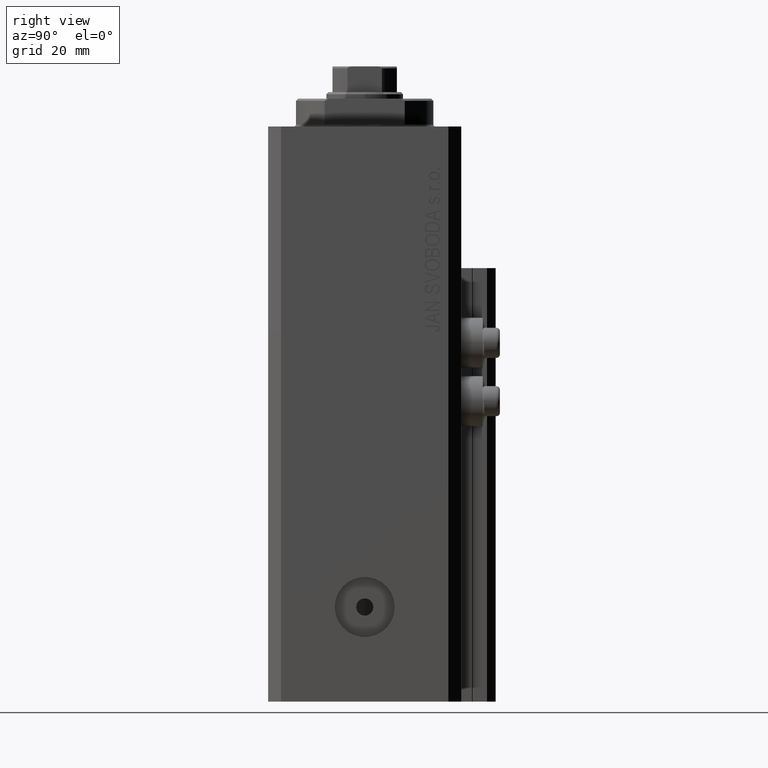
[diagram: clean part render]
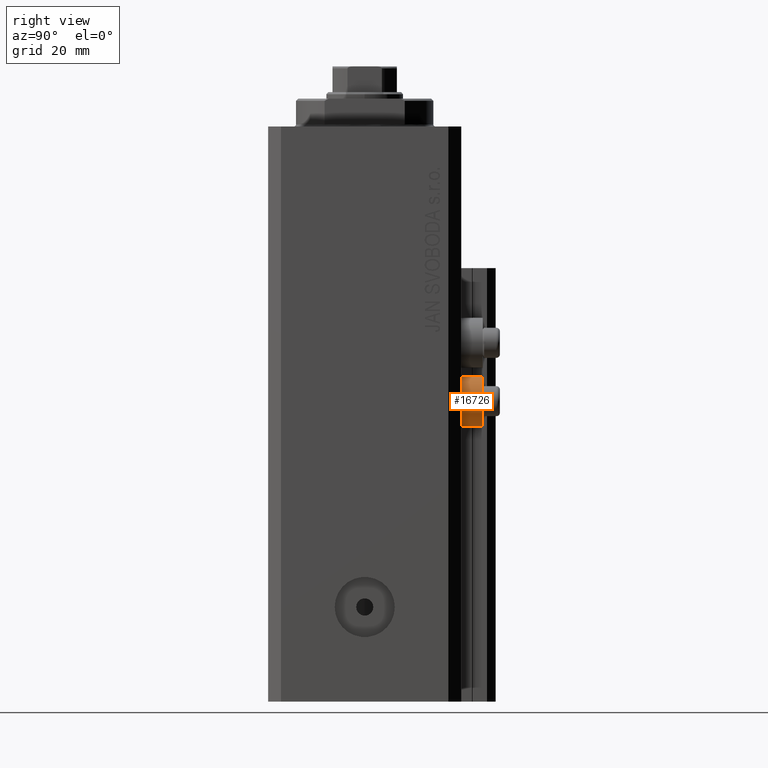
[diagram: same view with one face highlighted and labeled with its STEP entity id]
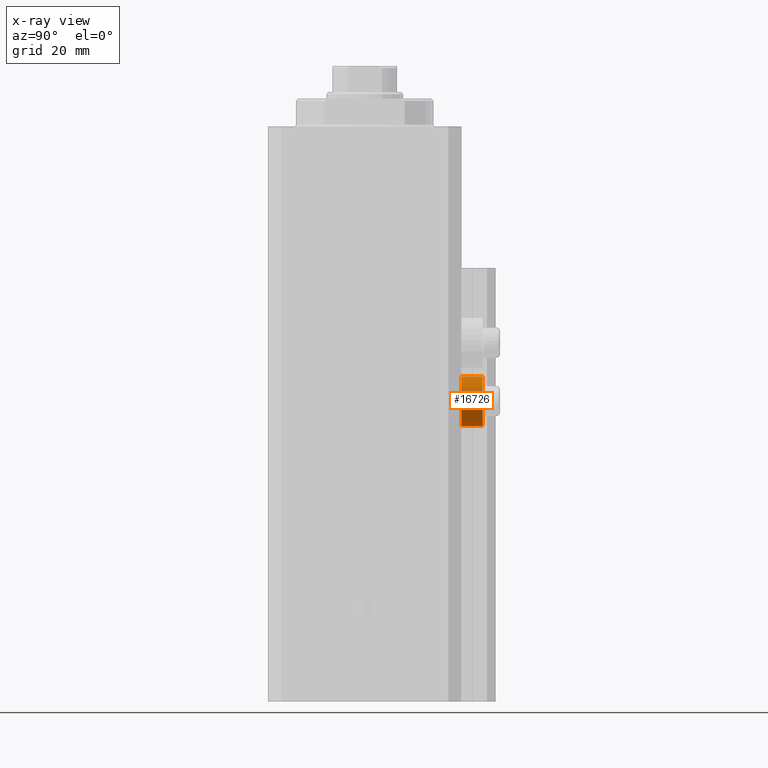
[diagram: x-ray of the same camera — body ghosted, the highlighted face saturated]
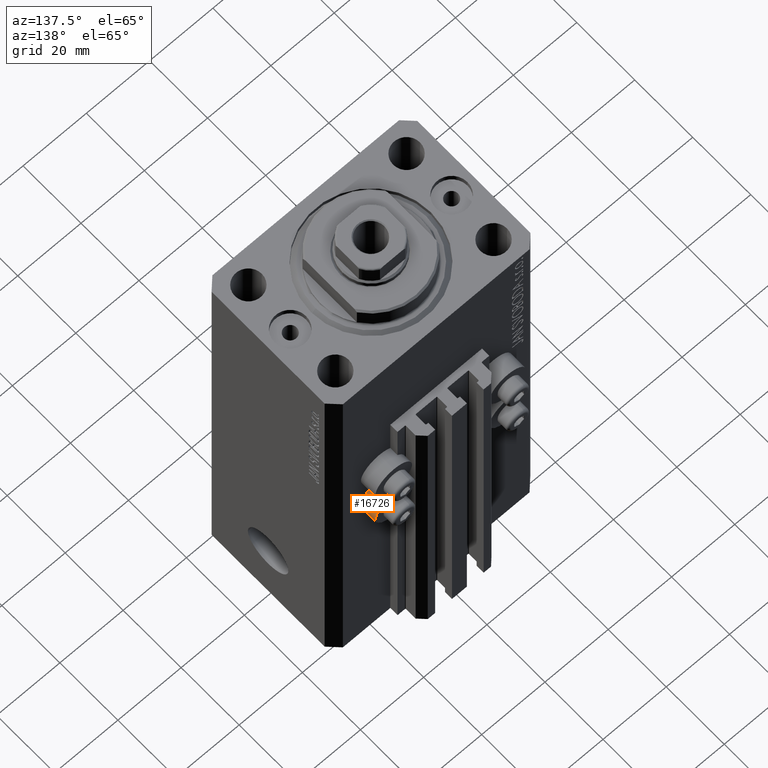
[diagram: same view with one face highlighted and labeled with its STEP entity id]
A machine part, right view. The second image highlights one B-rep face of the part: STEP entity #16726.
The next image is the same camera in x-ray: the body ghosted, the highlighted face saturated — about 0% of this face is hidden behind the body in this view.
A second angle (auxiliary view) of the same face is appended — the face is thin or edge-on in the first view.
In plain terms, the highlighted cylindrical surface (edge-blend (fillet) strip) has radius 5.8 mm, axis along (0, 1, 0).
Its self-contained STEP definition (entity closure, byte-faithful):
#1267 = EDGE_LOOP ( 'NONE', ( #11598, #41210, #5815, #25161 ) ) ;
#2550 = EDGE_CURVE ( 'NONE', #26035, #43776, #41567, .T. ) ;
#4432 = CIRCLE ( 'NONE', #15138, 5.799999999999999822 ) ;
#5815 = ORIENTED_EDGE ( 'NONE', *, *, #28645, .T. ) ;
#6814 = DIRECTION ( 'NONE',  ( 0.000000000000000000, 1.000000000000000000, 0.000000000000000000 ) ) ;
#8314 = DIRECTION ( 'NONE',  ( 0.000000000000000000, 1.000000000000000000, 0.000000000000000000 ) ) ;
#8865 = DIRECTION ( 'NONE',  ( 0.000000000000000000, 0.000000000000000000, -1.000000000000000000 ) ) ;
#9329 = CARTESIAN_POINT ( 'NONE',  ( 18.00000000000000355, 22.49999999999951328, -64.00000000000000000 ) ) ;
#10533 = EDGE_CURVE ( 'NONE', #36780, #39528, #4432, .T. ) ;
#11598 = ORIENTED_EDGE ( 'NONE', *, *, #41586, .F. ) ;
#15138 = AXIS2_PLACEMENT_3D ( 'NONE', #44807, #8314, #40766 ) ;
#16726 = ADVANCED_FACE ( 'NONE', ( #39748 ), #21341, .T. ) ;
#17096 = VECTOR ( 'NONE', #20112, 1000.000000000000000 ) ;
#19853 = DIRECTION ( 'NONE',  ( 0.000000000000000000, 1.000000000000000000, 0.000000000000000000 ) ) ;
#20112 = DIRECTION ( 'NONE',  ( 0.000000000000000000, 1.000000000000000000, 0.000000000000000000 ) ) ;
#21341 = CYLINDRICAL_SURFACE ( 'NONE', #43519, 5.799999999999999822 ) ;
#21822 = CARTESIAN_POINT ( 'NONE',  ( 18.00000000000000355, 27.49999999996051514, -64.00000000000000000 ) ) ;
#23398 = DIRECTION ( 'NONE',  ( 0.000000000000000000, 1.000000000000000000, 0.000000000000000000 ) ) ;
#23446 = CARTESIAN_POINT ( 'NONE',  ( 18.00000000000000355, 27.49999999996051514, -69.79999999999999716 ) ) ;
#24401 = CARTESIAN_POINT ( 'NONE',  ( 18.00000000000000355, 27.49999999996051514, -58.20000000000000284 ) ) ;
#25161 = ORIENTED_EDGE ( 'NONE', *, *, #10533, .F. ) ;
#26035 = VERTEX_POINT ( 'NONE', #27453 ) ;
#26751 = VECTOR ( 'NONE', #19853, 1000.000000000000000 ) ;
#27453 = CARTESIAN_POINT ( 'NONE',  ( 18.00000000000000355, 22.49999999999951328, -58.20000000000000284 ) ) ;
#28645 = EDGE_CURVE ( 'NONE', #43776, #39528, #41603, .T. ) ;
#29252 = CARTESIAN_POINT ( 'NONE',  ( 18.00000000000000355, 27.49999999996051514, -69.79999999999999716 ) ) ;
#30630 = CARTESIAN_POINT ( 'NONE',  ( 18.00000000000000355, 22.49999999999951328, -69.79999999999999716 ) ) ;
#31108 = LINE ( 'NONE', #24401, #17096 ) ;
#31829 = CARTESIAN_POINT ( 'NONE',  ( 18.00000000000000355, 27.49999999996051514, -58.20000000000000284 ) ) ;
#33185 = AXIS2_PLACEMENT_3D ( 'NONE', #9329, #23398, #8865 ) ;
#36780 = VERTEX_POINT ( 'NONE', #31829 ) ;
#39528 = VERTEX_POINT ( 'NONE', #29252 ) ;
#39748 = FACE_OUTER_BOUND ( 'NONE', #1267, .T. ) ;
#40766 = DIRECTION ( 'NONE',  ( 0.000000000000000000, 0.000000000000000000, -1.000000000000000000 ) ) ;
#41210 = ORIENTED_EDGE ( 'NONE', *, *, #2550, .T. ) ;
#41567 = CIRCLE ( 'NONE', #33185, 5.799999999999999822 ) ;
#41586 = EDGE_CURVE ( 'NONE', #26035, #36780, #31108, .T. ) ;
#41603 = LINE ( 'NONE', #23446, #26751 ) ;
#43311 = DIRECTION ( 'NONE',  ( 0.000000000000000000, 0.000000000000000000, -1.000000000000000000 ) ) ;
#43519 = AXIS2_PLACEMENT_3D ( 'NONE', #21822, #6814, #43311 ) ;
#43776 = VERTEX_POINT ( 'NONE', #30630 ) ;
#44807 = CARTESIAN_POINT ( 'NONE',  ( 18.00000000000000355, 27.49999999996051514, -64.00000000000000000 ) ) ;